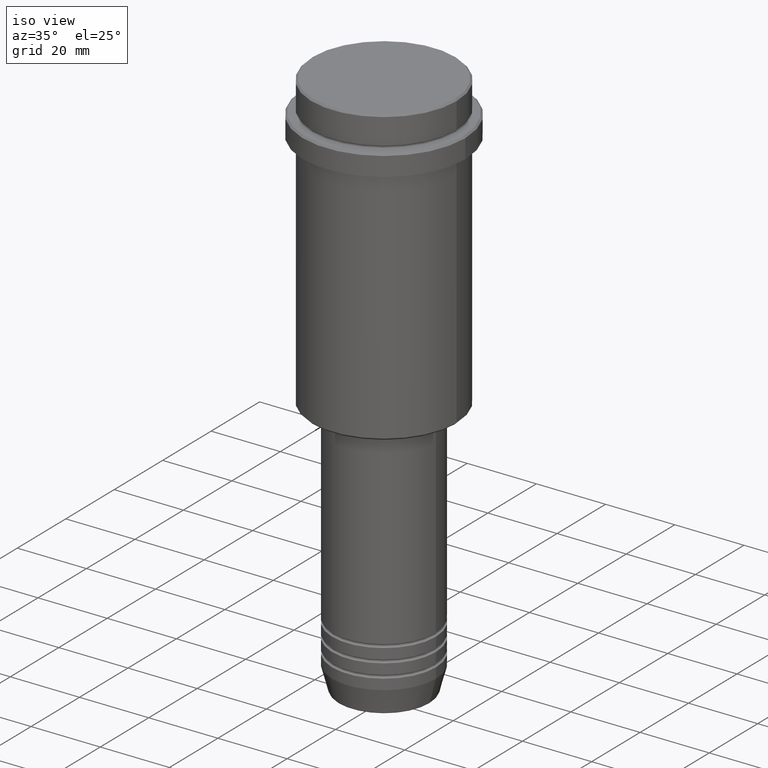
[diagram: clean part render]
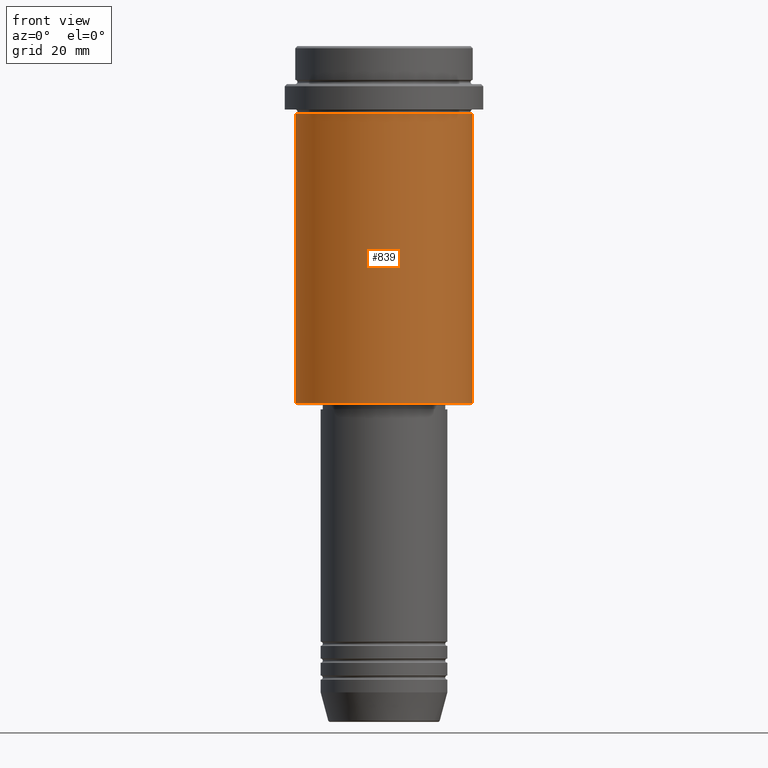
[diagram: tour spotlight — one face highlighted and labeled with its STEP entity id]
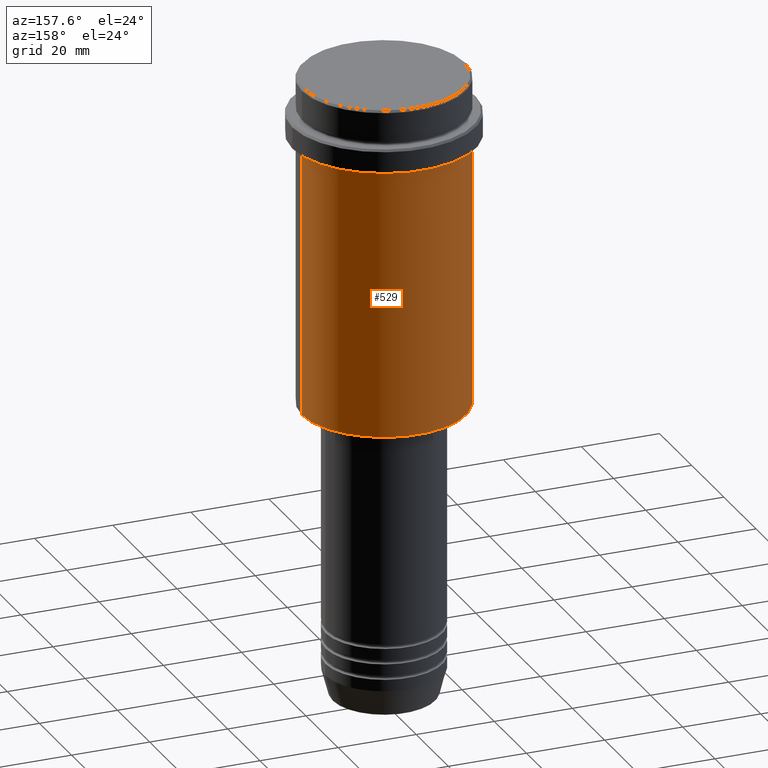
[diagram: tour spotlight — one face highlighted and labeled with its STEP entity id]
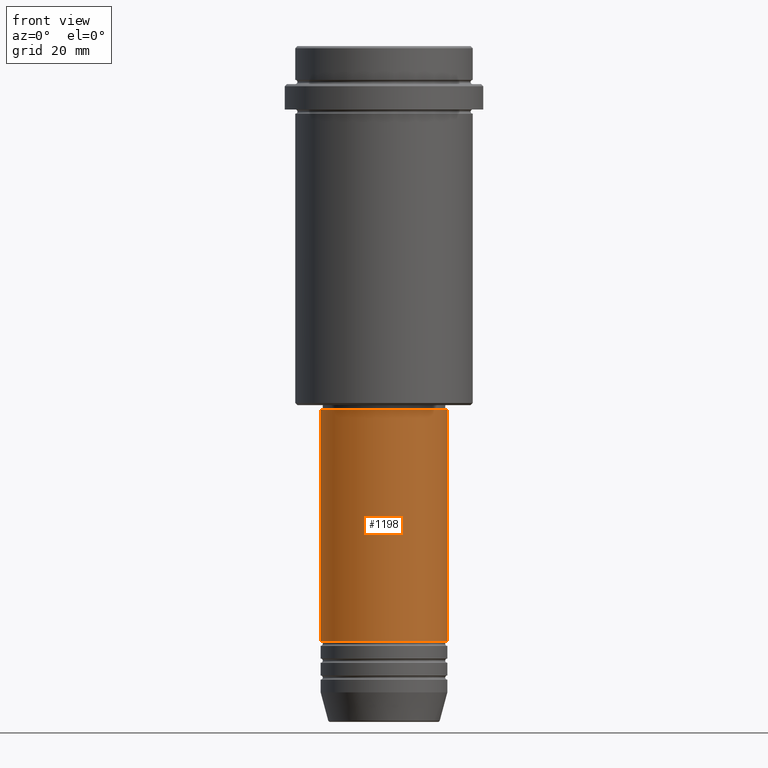
[diagram: tour spotlight — one face highlighted and labeled with its STEP entity id]
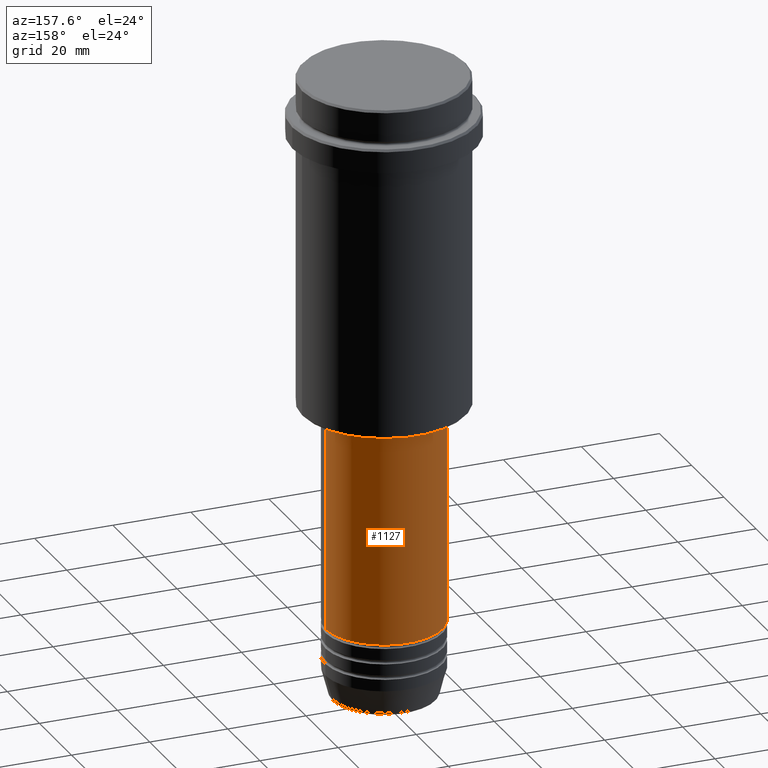
[diagram: tour spotlight — one face highlighted and labeled with its STEP entity id]
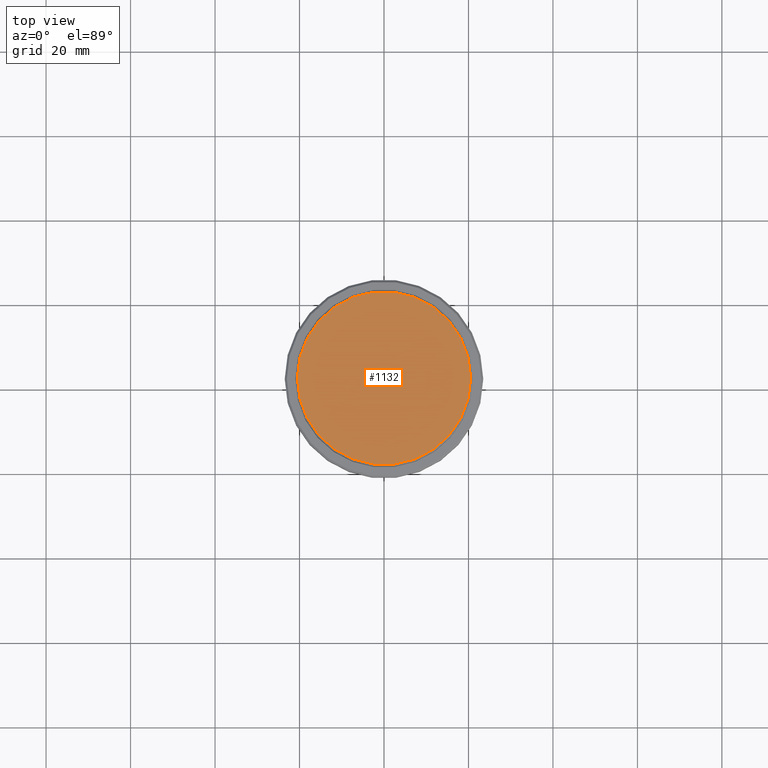
[diagram: tour spotlight — one face highlighted and labeled with its STEP entity id]
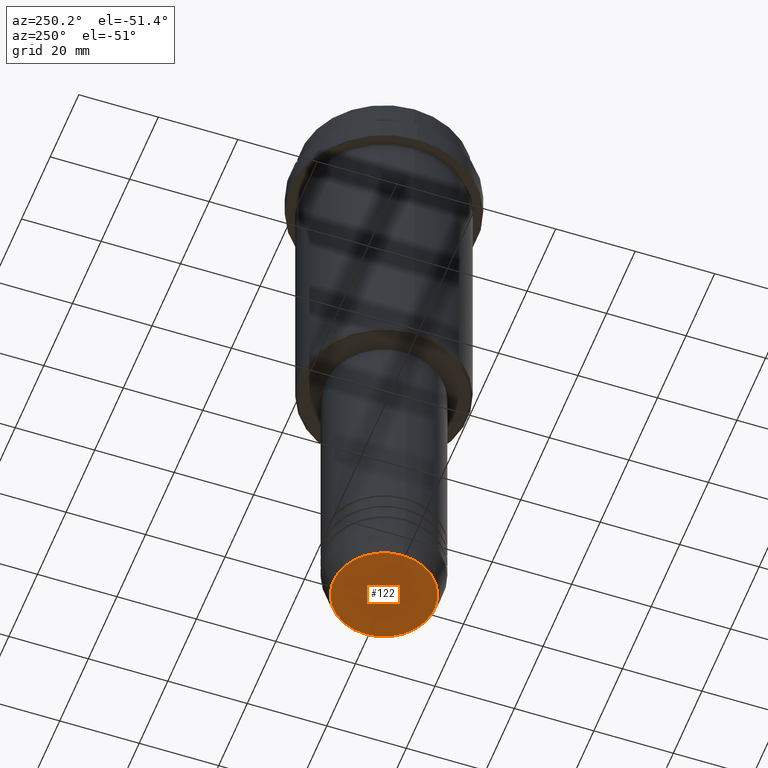
[diagram: tour spotlight — one face highlighted and labeled with its STEP entity id]
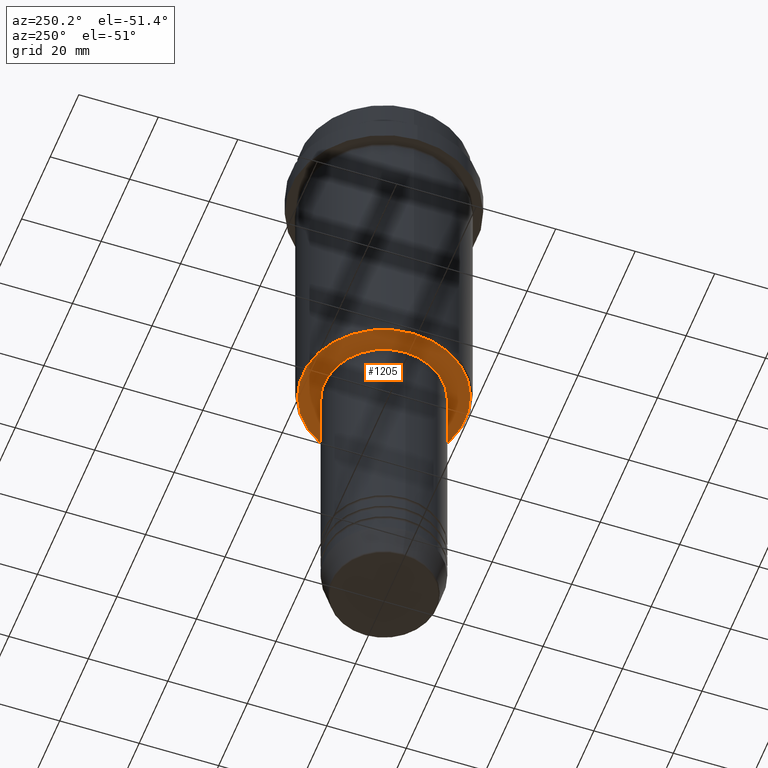
[diagram: tour spotlight — one face highlighted and labeled with its STEP entity id]
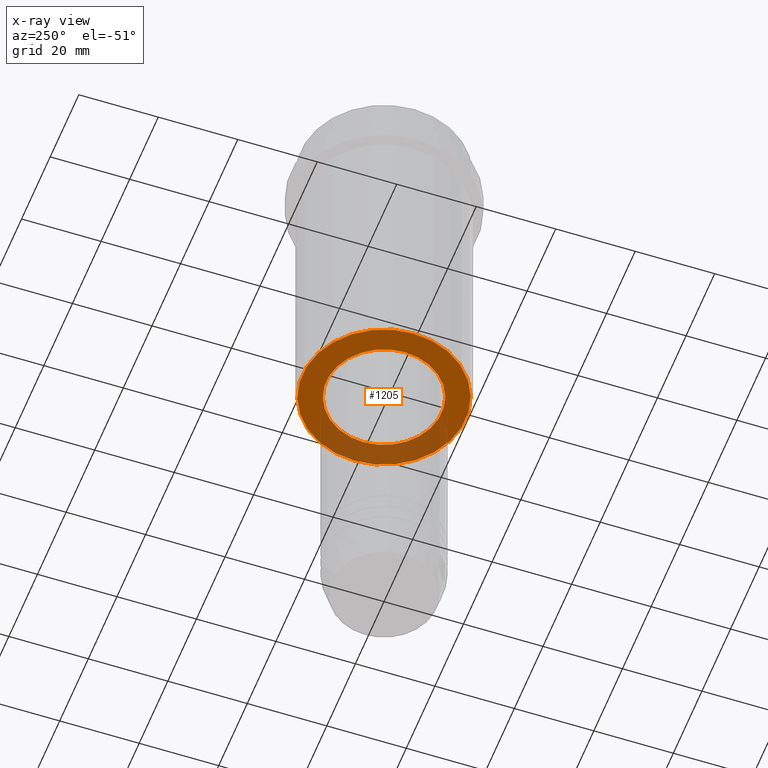
[diagram: x-ray of the same camera — body ghosted, this tour face saturated]
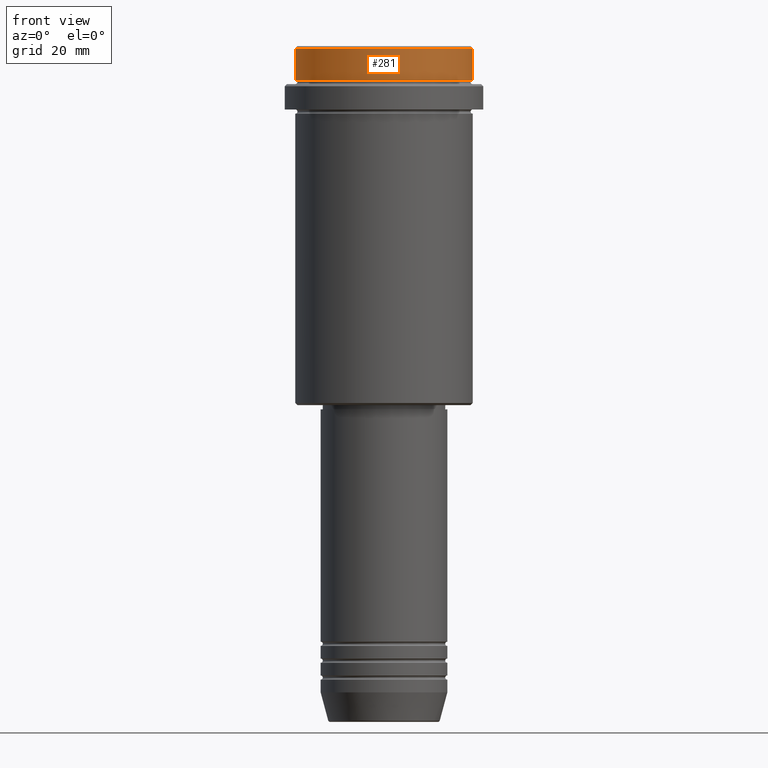
[diagram: tour spotlight — one face highlighted and labeled with its STEP entity id]
A machine part: a face-by-face anatomy tour. The part has 52 B-rep faces; the first image is the clean iso view, then the 8 largest visible faces are spotlighted one at a time (largest first), each with its STEP entity span.

Face 1 — front view, entity #839. In plain terms, the highlighted cylindrical surface (partial cylindrical patch) has radius 21 mm, axis along (-0, -0, 1).
Definition (entity closure, byte-faithful):
#51 = CARTESIAN_POINT ( 'NONE',  ( -21.00000000000000000, 2.571758278209441661E-15, 0.000000000000000000 ) ) ;
#146 = ORIENTED_EDGE ( 'NONE', *, *, #1324, .F. ) ;
#159 = LINE ( 'NONE', #51, #449 ) ;
#230 = CARTESIAN_POINT ( 'NONE',  ( -21.00000000000000000, 2.571758278209441661E-15, -84.50000000000001421 ) ) ;
#309 = EDGE_LOOP ( 'NONE', ( #570, #1296, #1130, #146 ) ) ;
#381 = VERTEX_POINT ( 'NONE', #1159 ) ;
#423 = CARTESIAN_POINT ( 'NONE',  ( 0.000000000000000000, 0.000000000000000000, 0.000000000000000000 ) ) ;
#448 = CARTESIAN_POINT ( 'NONE',  ( 0.000000000000000000, 0.000000000000000000, -84.50000000000001421 ) ) ;
#449 = VECTOR ( 'NONE', #811, 1000.000000000000000 ) ;
#452 = EDGE_CURVE ( 'NONE', #1274, #1176, #159, .T. ) ;
#538 = DIRECTION ( 'NONE',  ( 1.000000000000000000, 0.000000000000000000, 0.000000000000000000 ) ) ;
#550 = CIRCLE ( 'NONE', #1148, 21.00000000000000000 ) ;
#556 = CARTESIAN_POINT ( 'NONE',  ( 0.000000000000000000, 0.000000000000000000, -16.00000000000000355 ) ) ;
#570 = ORIENTED_EDGE ( 'NONE', *, *, #452, .F. ) ;
#609 = FACE_OUTER_BOUND ( 'NONE', #309, .T. ) ;
#685 = VERTEX_POINT ( 'NONE', #1173 ) ;
#699 = AXIS2_PLACEMENT_3D ( 'NONE', #423, #856, #1385 ) ;
#808 = LINE ( 'NONE', #1250, #902 ) ;
#811 = DIRECTION ( 'NONE',  ( -0.000000000000000000, -0.000000000000000000, 1.000000000000000000 ) ) ;
#832 = CARTESIAN_POINT ( 'NONE',  ( -21.00000000000000000, 2.571758278209441661E-15, -16.00000000000000355 ) ) ;
#839 = ADVANCED_FACE ( 'NONE', ( #609 ), #1403, .T. ) ;
#856 = DIRECTION ( 'NONE',  ( -0.000000000000000000, -0.000000000000000000, 1.000000000000000000 ) ) ;
#884 = DIRECTION ( 'NONE',  ( -0.000000000000000000, -0.000000000000000000, 1.000000000000000000 ) ) ;
#902 = VECTOR ( 'NONE', #1129, 1000.000000000000000 ) ;
#990 = EDGE_CURVE ( 'NONE', #685, #381, #808, .T. ) ;
#1101 = DIRECTION ( 'NONE',  ( -0.000000000000000000, -0.000000000000000000, 1.000000000000000000 ) ) ;
#1129 = DIRECTION ( 'NONE',  ( -0.000000000000000000, -0.000000000000000000, 1.000000000000000000 ) ) ;
#1130 = ORIENTED_EDGE ( 'NONE', *, *, #990, .T. ) ;
#1148 = AXIS2_PLACEMENT_3D ( 'NONE', #448, #884, #1241 ) ;
#1159 = CARTESIAN_POINT ( 'NONE',  ( 21.00000000000000000, 0.000000000000000000, -16.00000000000000355 ) ) ;
#1173 = CARTESIAN_POINT ( 'NONE',  ( 21.00000000000000000, 0.000000000000000000, -84.50000000000001421 ) ) ;
#1176 = VERTEX_POINT ( 'NONE', #832 ) ;
#1241 = DIRECTION ( 'NONE',  ( -1.000000000000000000, 0.000000000000000000, 0.000000000000000000 ) ) ;
#1250 = CARTESIAN_POINT ( 'NONE',  ( 21.00000000000000000, 0.000000000000000000, 0.000000000000000000 ) ) ;
#1263 = CIRCLE ( 'NONE', #1373, 21.00000000000000000 ) ;
#1274 = VERTEX_POINT ( 'NONE', #230 ) ;
#1296 = ORIENTED_EDGE ( 'NONE', *, *, #1405, .T. ) ;
#1324 = EDGE_CURVE ( 'NONE', #1176, #381, #1263, .T. ) ;
#1373 = AXIS2_PLACEMENT_3D ( 'NONE', #556, #1101, #538 ) ;
#1385 = DIRECTION ( 'NONE',  ( 1.000000000000000000, 0.000000000000000000, 0.000000000000000000 ) ) ;
#1403 = CYLINDRICAL_SURFACE ( 'NONE', #699, 21.00000000000000000 ) ;
#1405 = EDGE_CURVE ( 'NONE', #1274, #685, #550, .T. ) ;

Face 2 — auxiliary view, entity #529. In plain terms, the highlighted cylindrical surface (partial cylindrical patch) has radius 21 mm, axis along (-0, -0, 1).
Definition (entity closure, byte-faithful):
#33 = DIRECTION ( 'NONE',  ( -0.000000000000000000, -0.000000000000000000, 1.000000000000000000 ) ) ;
#51 = CARTESIAN_POINT ( 'NONE',  ( -21.00000000000000000, 2.571758278209441661E-15, 0.000000000000000000 ) ) ;
#125 = DIRECTION ( 'NONE',  ( 1.000000000000000000, 0.000000000000000000, 0.000000000000000000 ) ) ;
#133 = AXIS2_PLACEMENT_3D ( 'NONE', #191, #621, #964 ) ;
#159 = LINE ( 'NONE', #51, #449 ) ;
#191 = CARTESIAN_POINT ( 'NONE',  ( 0.000000000000000000, 0.000000000000000000, 0.000000000000000000 ) ) ;
#230 = CARTESIAN_POINT ( 'NONE',  ( -21.00000000000000000, 2.571758278209441661E-15, -84.50000000000001421 ) ) ;
#257 = AXIS2_PLACEMENT_3D ( 'NONE', #485, #33, #1337 ) ;
#279 = AXIS2_PLACEMENT_3D ( 'NONE', #1322, #667, #125 ) ;
#363 = CYLINDRICAL_SURFACE ( 'NONE', #133, 21.00000000000000000 ) ;
#381 = VERTEX_POINT ( 'NONE', #1159 ) ;
#449 = VECTOR ( 'NONE', #811, 1000.000000000000000 ) ;
#452 = EDGE_CURVE ( 'NONE', #1274, #1176, #159, .T. ) ;
#485 = CARTESIAN_POINT ( 'NONE',  ( 0.000000000000000000, 0.000000000000000000, -84.50000000000001421 ) ) ;
#496 = CIRCLE ( 'NONE', #257, 21.00000000000000000 ) ;
#529 = ADVANCED_FACE ( 'NONE', ( #600 ), #363, .T. ) ;
#600 = FACE_OUTER_BOUND ( 'NONE', #727, .T. ) ;
#621 = DIRECTION ( 'NONE',  ( -0.000000000000000000, -0.000000000000000000, 1.000000000000000000 ) ) ;
#667 = DIRECTION ( 'NONE',  ( -0.000000000000000000, -0.000000000000000000, 1.000000000000000000 ) ) ;
#685 = VERTEX_POINT ( 'NONE', #1173 ) ;
#727 = EDGE_LOOP ( 'NONE', ( #950, #1051, #836, #875 ) ) ;
#808 = LINE ( 'NONE', #1250, #902 ) ;
#811 = DIRECTION ( 'NONE',  ( -0.000000000000000000, -0.000000000000000000, 1.000000000000000000 ) ) ;
#832 = CARTESIAN_POINT ( 'NONE',  ( -21.00000000000000000, 2.571758278209441661E-15, -16.00000000000000355 ) ) ;
#836 = ORIENTED_EDGE ( 'NONE', *, *, #970, .F. ) ;
#875 = ORIENTED_EDGE ( 'NONE', *, *, #990, .F. ) ;
#902 = VECTOR ( 'NONE', #1129, 1000.000000000000000 ) ;
#950 = ORIENTED_EDGE ( 'NONE', *, *, #1020, .T. ) ;
#964 = DIRECTION ( 'NONE',  ( 1.000000000000000000, 0.000000000000000000, 0.000000000000000000 ) ) ;
#970 = EDGE_CURVE ( 'NONE', #381, #1176, #1371, .T. ) ;
#990 = EDGE_CURVE ( 'NONE', #685, #381, #808, .T. ) ;
#1020 = EDGE_CURVE ( 'NONE', #685, #1274, #496, .T. ) ;
#1051 = ORIENTED_EDGE ( 'NONE', *, *, #452, .T. ) ;
#1129 = DIRECTION ( 'NONE',  ( -0.000000000000000000, -0.000000000000000000, 1.000000000000000000 ) ) ;
#1159 = CARTESIAN_POINT ( 'NONE',  ( 21.00000000000000000, 0.000000000000000000, -16.00000000000000355 ) ) ;
#1173 = CARTESIAN_POINT ( 'NONE',  ( 21.00000000000000000, 0.000000000000000000, -84.50000000000001421 ) ) ;
#1176 = VERTEX_POINT ( 'NONE', #832 ) ;
#1250 = CARTESIAN_POINT ( 'NONE',  ( 21.00000000000000000, 0.000000000000000000, 0.000000000000000000 ) ) ;
#1274 = VERTEX_POINT ( 'NONE', #230 ) ;
#1322 = CARTESIAN_POINT ( 'NONE',  ( 0.000000000000000000, 0.000000000000000000, -16.00000000000000355 ) ) ;
#1337 = DIRECTION ( 'NONE',  ( -1.000000000000000000, 0.000000000000000000, 0.000000000000000000 ) ) ;
#1371 = CIRCLE ( 'NONE', #279, 21.00000000000000000 ) ;

Face 3 — front view, entity #1198. In plain terms, the highlighted cylindrical surface (partial cylindrical patch) has radius 15 mm, axis along (-0, -0, 1).
Definition (entity closure, byte-faithful):
#61 = LINE ( 'NONE', #1271, #1118 ) ;
#81 = DIRECTION ( 'NONE',  ( -0.000000000000000000, -0.000000000000000000, 1.000000000000000000 ) ) ;
#95 = ORIENTED_EDGE ( 'NONE', *, *, #969, .F. ) ;
#119 = CARTESIAN_POINT ( 'NONE',  ( 0.000000000000000000, 0.000000000000000000, -86.00000000000000000 ) ) ;
#123 = CARTESIAN_POINT ( 'NONE',  ( -15.00000000000000000, 1.836970198721029589E-15, -140.9999999999999147 ) ) ;
#156 = VECTOR ( 'NONE', #1199, 1000.000000000000000 ) ;
#175 = CARTESIAN_POINT ( 'NONE',  ( 0.000000000000000000, 0.000000000000000000, 0.000000000000000000 ) ) ;
#204 = CARTESIAN_POINT ( 'NONE',  ( 0.000000000000000000, 0.000000000000000000, -140.9999999999999147 ) ) ;
#297 = CIRCLE ( 'NONE', #521, 15.00000000000000000 ) ;
#330 = ORIENTED_EDGE ( 'NONE', *, *, #714, .T. ) ;
#451 = EDGE_LOOP ( 'NONE', ( #1402, #707, #330, #95 ) ) ;
#505 = EDGE_CURVE ( 'NONE', #1239, #644, #749, .T. ) ;
#506 = CARTESIAN_POINT ( 'NONE',  ( -15.00000000000000000, 1.836970198721029589E-15, -86.00000000000000000 ) ) ;
#521 = AXIS2_PLACEMENT_3D ( 'NONE', #204, #752, #1083 ) ;
#604 = EDGE_CURVE ( 'NONE', #1239, #782, #297, .T. ) ;
#607 = DIRECTION ( 'NONE',  ( -0.000000000000000000, -0.000000000000000000, 1.000000000000000000 ) ) ;
#644 = VERTEX_POINT ( 'NONE', #506 ) ;
#707 = ORIENTED_EDGE ( 'NONE', *, *, #604, .T. ) ;
#712 = FACE_OUTER_BOUND ( 'NONE', #451, .T. ) ;
#714 = EDGE_CURVE ( 'NONE', #782, #1091, #61, .T. ) ;
#749 = LINE ( 'NONE', #974, #156 ) ;
#752 = DIRECTION ( 'NONE',  ( -0.000000000000000000, -0.000000000000000000, 1.000000000000000000 ) ) ;
#782 = VERTEX_POINT ( 'NONE', #939 ) ;
#879 = DIRECTION ( 'NONE',  ( 1.000000000000000000, 0.000000000000000000, 0.000000000000000000 ) ) ;
#939 = CARTESIAN_POINT ( 'NONE',  ( 15.00000000000000000, 0.000000000000000000, -140.9999999999999147 ) ) ;
#969 = EDGE_CURVE ( 'NONE', #644, #1091, #1328, .T. ) ;
#974 = CARTESIAN_POINT ( 'NONE',  ( -15.00000000000000000, 1.836970198721029589E-15, 0.000000000000000000 ) ) ;
#992 = DIRECTION ( 'NONE',  ( -0.000000000000000000, -0.000000000000000000, 1.000000000000000000 ) ) ;
#1026 = AXIS2_PLACEMENT_3D ( 'NONE', #119, #992, #879 ) ;
#1059 = DIRECTION ( 'NONE',  ( 1.000000000000000000, 0.000000000000000000, 0.000000000000000000 ) ) ;
#1075 = AXIS2_PLACEMENT_3D ( 'NONE', #175, #607, #1059 ) ;
#1083 = DIRECTION ( 'NONE',  ( 1.000000000000000000, 0.000000000000000000, 0.000000000000000000 ) ) ;
#1091 = VERTEX_POINT ( 'NONE', #1352 ) ;
#1118 = VECTOR ( 'NONE', #81, 1000.000000000000000 ) ;
#1155 = CYLINDRICAL_SURFACE ( 'NONE', #1075, 15.00000000000000000 ) ;
#1198 = ADVANCED_FACE ( 'NONE', ( #712 ), #1155, .T. ) ;
#1199 = DIRECTION ( 'NONE',  ( -0.000000000000000000, -0.000000000000000000, 1.000000000000000000 ) ) ;
#1239 = VERTEX_POINT ( 'NONE', #123 ) ;
#1271 = CARTESIAN_POINT ( 'NONE',  ( 15.00000000000000000, 0.000000000000000000, 0.000000000000000000 ) ) ;
#1328 = CIRCLE ( 'NONE', #1026, 15.00000000000000000 ) ;
#1352 = CARTESIAN_POINT ( 'NONE',  ( 15.00000000000000000, 0.000000000000000000, -86.00000000000000000 ) ) ;
#1402 = ORIENTED_EDGE ( 'NONE', *, *, #505, .F. ) ;

Face 4 — auxiliary view, entity #1127. In plain terms, the highlighted cylindrical surface (partial cylindrical patch) has radius 15 mm, axis along (-0, -0, 1).
Definition (entity closure, byte-faithful):
#61 = LINE ( 'NONE', #1271, #1118 ) ;
#81 = DIRECTION ( 'NONE',  ( -0.000000000000000000, -0.000000000000000000, 1.000000000000000000 ) ) ;
#85 = DIRECTION ( 'NONE',  ( 1.000000000000000000, 0.000000000000000000, 0.000000000000000000 ) ) ;
#105 = DIRECTION ( 'NONE',  ( -0.000000000000000000, -0.000000000000000000, 1.000000000000000000 ) ) ;
#123 = CARTESIAN_POINT ( 'NONE',  ( -15.00000000000000000, 1.836970198721029589E-15, -140.9999999999999147 ) ) ;
#156 = VECTOR ( 'NONE', #1199, 1000.000000000000000 ) ;
#185 = EDGE_LOOP ( 'NONE', ( #1287, #630, #828, #1281 ) ) ;
#286 = DIRECTION ( 'NONE',  ( -0.000000000000000000, -0.000000000000000000, 1.000000000000000000 ) ) ;
#296 = DIRECTION ( 'NONE',  ( 1.000000000000000000, 0.000000000000000000, 0.000000000000000000 ) ) ;
#305 = EDGE_CURVE ( 'NONE', #782, #1239, #1000, .T. ) ;
#354 = CARTESIAN_POINT ( 'NONE',  ( 0.000000000000000000, 0.000000000000000000, -86.00000000000000000 ) ) ;
#389 = AXIS2_PLACEMENT_3D ( 'NONE', #915, #286, #296 ) ;
#505 = EDGE_CURVE ( 'NONE', #1239, #644, #749, .T. ) ;
#506 = CARTESIAN_POINT ( 'NONE',  ( -15.00000000000000000, 1.836970198721029589E-15, -86.00000000000000000 ) ) ;
#553 = DIRECTION ( 'NONE',  ( 1.000000000000000000, 0.000000000000000000, 0.000000000000000000 ) ) ;
#567 = CIRCLE ( 'NONE', #1120, 15.00000000000000000 ) ;
#603 = CYLINDRICAL_SURFACE ( 'NONE', #981, 15.00000000000000000 ) ;
#630 = ORIENTED_EDGE ( 'NONE', *, *, #505, .T. ) ;
#644 = VERTEX_POINT ( 'NONE', #506 ) ;
#714 = EDGE_CURVE ( 'NONE', #782, #1091, #61, .T. ) ;
#749 = LINE ( 'NONE', #974, #156 ) ;
#782 = VERTEX_POINT ( 'NONE', #939 ) ;
#828 = ORIENTED_EDGE ( 'NONE', *, *, #892, .F. ) ;
#892 = EDGE_CURVE ( 'NONE', #1091, #644, #567, .T. ) ;
#915 = CARTESIAN_POINT ( 'NONE',  ( 0.000000000000000000, 0.000000000000000000, -140.9999999999999147 ) ) ;
#926 = FACE_OUTER_BOUND ( 'NONE', #185, .T. ) ;
#939 = CARTESIAN_POINT ( 'NONE',  ( 15.00000000000000000, 0.000000000000000000, -140.9999999999999147 ) ) ;
#974 = CARTESIAN_POINT ( 'NONE',  ( -15.00000000000000000, 1.836970198721029589E-15, 0.000000000000000000 ) ) ;
#981 = AXIS2_PLACEMENT_3D ( 'NONE', #1259, #1042, #85 ) ;
#1000 = CIRCLE ( 'NONE', #389, 15.00000000000000000 ) ;
#1042 = DIRECTION ( 'NONE',  ( -0.000000000000000000, -0.000000000000000000, 1.000000000000000000 ) ) ;
#1091 = VERTEX_POINT ( 'NONE', #1352 ) ;
#1118 = VECTOR ( 'NONE', #81, 1000.000000000000000 ) ;
#1120 = AXIS2_PLACEMENT_3D ( 'NONE', #354, #105, #553 ) ;
#1127 = ADVANCED_FACE ( 'NONE', ( #926 ), #603, .T. ) ;
#1199 = DIRECTION ( 'NONE',  ( -0.000000000000000000, -0.000000000000000000, 1.000000000000000000 ) ) ;
#1239 = VERTEX_POINT ( 'NONE', #123 ) ;
#1259 = CARTESIAN_POINT ( 'NONE',  ( 0.000000000000000000, 0.000000000000000000, 0.000000000000000000 ) ) ;
#1271 = CARTESIAN_POINT ( 'NONE',  ( 15.00000000000000000, 0.000000000000000000, 0.000000000000000000 ) ) ;
#1281 = ORIENTED_EDGE ( 'NONE', *, *, #714, .F. ) ;
#1287 = ORIENTED_EDGE ( 'NONE', *, *, #305, .T. ) ;
#1352 = CARTESIAN_POINT ( 'NONE',  ( 15.00000000000000000, 0.000000000000000000, -86.00000000000000000 ) ) ;

Face 5 — top view, entity #1132. In plain terms, the highlighted planar face has unit normal (0, -0, 1).
Definition (entity closure, byte-faithful):
#3 = AXIS2_PLACEMENT_3D ( 'NONE', #488, #921, #169 ) ;
#16 = CARTESIAN_POINT ( 'NONE',  ( 0.000000000000000000, 0.000000000000000000, 0.000000000000000000 ) ) ;
#47 = EDGE_CURVE ( 'NONE', #554, #396, #280, .T. ) ;
#169 = DIRECTION ( 'NONE',  ( 1.000000000000000000, 0.000000000000000000, 0.000000000000000000 ) ) ;
#203 = CARTESIAN_POINT ( 'NONE',  ( 20.49999999999997513, 2.541142108230756691E-15, 0.000000000000000000 ) ) ;
#280 = CIRCLE ( 'NONE', #3, 20.49999999999997513 ) ;
#341 = ORIENTED_EDGE ( 'NONE', *, *, #47, .T. ) ;
#396 = VERTEX_POINT ( 'NONE', #203 ) ;
#482 = CARTESIAN_POINT ( 'NONE',  ( -20.49999999999997513, 0.000000000000000000, 0.000000000000000000 ) ) ;
#488 = CARTESIAN_POINT ( 'NONE',  ( 0.000000000000000000, 0.000000000000000000, 0.000000000000000000 ) ) ;
#500 = DIRECTION ( 'NONE',  ( 0.000000000000000000, -0.000000000000000000, 1.000000000000000000 ) ) ;
#554 = VERTEX_POINT ( 'NONE', #482 ) ;
#794 = AXIS2_PLACEMENT_3D ( 'NONE', #1378, #500, #1036 ) ;
#796 = CIRCLE ( 'NONE', #1330, 20.49999999999997513 ) ;
#921 = DIRECTION ( 'NONE',  ( -0.000000000000000000, -0.000000000000000000, 1.000000000000000000 ) ) ;
#988 = ORIENTED_EDGE ( 'NONE', *, *, #1395, .T. ) ;
#999 = EDGE_LOOP ( 'NONE', ( #341, #988 ) ) ;
#1036 = DIRECTION ( 'NONE',  ( 1.000000000000000000, 0.000000000000000000, 0.000000000000000000 ) ) ;
#1111 = DIRECTION ( 'NONE',  ( -0.000000000000000000, -0.000000000000000000, 1.000000000000000000 ) ) ;
#1128 = DIRECTION ( 'NONE',  ( 1.000000000000000000, 0.000000000000000000, 0.000000000000000000 ) ) ;
#1132 = ADVANCED_FACE ( 'NONE', ( #1369 ), #1162, .T. ) ;
#1162 = PLANE ( 'NONE',  #794 ) ;
#1330 = AXIS2_PLACEMENT_3D ( 'NONE', #16, #1111, #1128 ) ;
#1369 = FACE_OUTER_BOUND ( 'NONE', #999, .T. ) ;
#1378 = CARTESIAN_POINT ( 'NONE',  ( 0.000000000000000000, 0.000000000000000000, 0.000000000000000000 ) ) ;
#1395 = EDGE_CURVE ( 'NONE', #396, #554, #796, .T. ) ;

Face 6 — auxiliary view, entity #122. In plain terms, the highlighted planar face has unit normal (0, -0, 1).
Definition (entity closure, byte-faithful):
#79 = CARTESIAN_POINT ( 'NONE',  ( 0.000000000000000000, 0.000000000000000000, -160.0000000000000000 ) ) ;
#118 = DIRECTION ( 'NONE',  ( 0.000000000000000000, 0.000000000000000000, -1.000000000000000000 ) ) ;
#122 = ADVANCED_FACE ( 'NONE', ( #965 ), #428, .F. ) ;
#234 = AXIS2_PLACEMENT_3D ( 'NONE', #803, #118, #242 ) ;
#242 = DIRECTION ( 'NONE',  ( 1.000000000000000000, 0.000000000000000000, 0.000000000000000000 ) ) ;
#292 = DIRECTION ( 'NONE',  ( 1.000000000000000000, 0.000000000000000000, 0.000000000000000000 ) ) ;
#349 = AXIS2_PLACEMENT_3D ( 'NONE', #744, #735, #837 ) ;
#393 = CIRCLE ( 'NONE', #774, 12.74069215899265828 ) ;
#422 = EDGE_LOOP ( 'NONE', ( #1163, #1299 ) ) ;
#428 = PLANE ( 'NONE',  #349 ) ;
#433 = VERTEX_POINT ( 'NONE', #919 ) ;
#583 = VERTEX_POINT ( 'NONE', #1015 ) ;
#641 = EDGE_CURVE ( 'NONE', #433, #583, #816, .T. ) ;
#735 = DIRECTION ( 'NONE',  ( 0.000000000000000000, -0.000000000000000000, 1.000000000000000000 ) ) ;
#744 = CARTESIAN_POINT ( 'NONE',  ( 0.000000000000000000, 0.000000000000000000, -160.0000000000000000 ) ) ;
#774 = AXIS2_PLACEMENT_3D ( 'NONE', #79, #1273, #292 ) ;
#803 = CARTESIAN_POINT ( 'NONE',  ( 0.000000000000000000, 0.000000000000000000, -160.0000000000000000 ) ) ;
#816 = CIRCLE ( 'NONE', #234, 12.74069215899265828 ) ;
#837 = DIRECTION ( 'NONE',  ( 1.000000000000000000, 0.000000000000000000, 0.000000000000000000 ) ) ;
#919 = CARTESIAN_POINT ( 'NONE',  ( 12.74069215899265828, 0.000000000000000000, -160.0000000000000000 ) ) ;
#965 = FACE_OUTER_BOUND ( 'NONE', #422, .T. ) ;
#1015 = CARTESIAN_POINT ( 'NONE',  ( -12.74069215899265828, 1.589857736427681035E-15, -160.0000000000000000 ) ) ;
#1163 = ORIENTED_EDGE ( 'NONE', *, *, #641, .T. ) ;
#1214 = EDGE_CURVE ( 'NONE', #583, #433, #393, .T. ) ;
#1273 = DIRECTION ( 'NONE',  ( 0.000000000000000000, 0.000000000000000000, -1.000000000000000000 ) ) ;
#1299 = ORIENTED_EDGE ( 'NONE', *, *, #1214, .T. ) ;

Face 7 — auxiliary view, entity #1205. An x-ray twin of the same camera follows (body ghosted, this face saturated) — the face is partly hidden behind the body. In plain terms, the highlighted planar face has unit normal (0, 0, -1).
Definition (entity closure, byte-faithful):
#45 = AXIS2_PLACEMENT_3D ( 'NONE', #1407, #224, #980 ) ;
#54 = CARTESIAN_POINT ( 'NONE',  ( -14.49999999999999467, 1.775737858763661620E-15, -85.00000000000000000 ) ) ;
#66 = FACE_OUTER_BOUND ( 'NONE', #73, .T. ) ;
#73 = EDGE_LOOP ( 'NONE', ( #106, #777 ) ) ;
#106 = ORIENTED_EDGE ( 'NONE', *, *, #541, .T. ) ;
#116 = EDGE_CURVE ( 'NONE', #871, #456, #679, .T. ) ;
#147 = DIRECTION ( 'NONE',  ( -1.000000000000000000, 0.000000000000000000, 0.000000000000000000 ) ) ;
#207 = CARTESIAN_POINT ( 'NONE',  ( 0.000000000000000000, 0.000000000000000000, -85.00000000000000000 ) ) ;
#224 = DIRECTION ( 'NONE',  ( 0.000000000000000000, 0.000000000000000000, -1.000000000000000000 ) ) ;
#268 = CARTESIAN_POINT ( 'NONE',  ( 20.50000000000003197, 0.000000000000000000, -85.00000000000000000 ) ) ;
#322 = CARTESIAN_POINT ( 'NONE',  ( 0.000000000000000000, 0.000000000000000000, -85.00000000000000000 ) ) ;
#418 = DIRECTION ( 'NONE',  ( 1.000000000000000000, 0.000000000000000000, 0.000000000000000000 ) ) ;
#444 = ORIENTED_EDGE ( 'NONE', *, *, #1297, .T. ) ;
#456 = VERTEX_POINT ( 'NONE', #268 ) ;
#459 = DIRECTION ( 'NONE',  ( 0.000000000000000000, 0.000000000000000000, -1.000000000000000000 ) ) ;
#473 = CIRCLE ( 'NONE', #569, 14.49999999999999467 ) ;
#491 = CARTESIAN_POINT ( 'NONE',  ( 0.000000000000000000, 0.000000000000000000, -85.00000000000000000 ) ) ;
#541 = EDGE_CURVE ( 'NONE', #456, #871, #1215, .T. ) ;
#569 = AXIS2_PLACEMENT_3D ( 'NONE', #322, #1078, #1401 ) ;
#638 = VERTEX_POINT ( 'NONE', #1252 ) ;
#647 = EDGE_LOOP ( 'NONE', ( #840, #444 ) ) ;
#679 = CIRCLE ( 'NONE', #45, 20.50000000000003197 ) ;
#743 = AXIS2_PLACEMENT_3D ( 'NONE', #491, #1068, #418 ) ;
#758 = EDGE_CURVE ( 'NONE', #638, #1106, #1143, .T. ) ;
#765 = CARTESIAN_POINT ( 'NONE',  ( -20.50000000000003197, 2.541142108230759846E-15, -85.00000000000000000 ) ) ;
#777 = ORIENTED_EDGE ( 'NONE', *, *, #116, .T. ) ;
#838 = PLANE ( 'NONE',  #1217 ) ;
#840 = ORIENTED_EDGE ( 'NONE', *, *, #758, .T. ) ;
#871 = VERTEX_POINT ( 'NONE', #765 ) ;
#949 = CARTESIAN_POINT ( 'NONE',  ( 0.000000000000000000, 21.00000000000000000, -85.00000000000000000 ) ) ;
#980 = DIRECTION ( 'NONE',  ( -1.000000000000000000, 0.000000000000000000, 0.000000000000000000 ) ) ;
#1054 = FACE_BOUND ( 'NONE', #647, .T. ) ;
#1066 = DIRECTION ( 'NONE',  ( 0.000000000000000000, 0.000000000000000000, -1.000000000000000000 ) ) ;
#1068 = DIRECTION ( 'NONE',  ( -0.000000000000000000, -0.000000000000000000, 1.000000000000000000 ) ) ;
#1078 = DIRECTION ( 'NONE',  ( -0.000000000000000000, -0.000000000000000000, 1.000000000000000000 ) ) ;
#1106 = VERTEX_POINT ( 'NONE', #54 ) ;
#1143 = CIRCLE ( 'NONE', #743, 14.49999999999999467 ) ;
#1178 = DIRECTION ( 'NONE',  ( -1.000000000000000000, 0.000000000000000000, -0.000000000000000000 ) ) ;
#1205 = ADVANCED_FACE ( 'NONE', ( #66, #1054 ), #838, .T. ) ;
#1215 = CIRCLE ( 'NONE', #1309, 20.50000000000003197 ) ;
#1217 = AXIS2_PLACEMENT_3D ( 'NONE', #949, #1066, #1178 ) ;
#1252 = CARTESIAN_POINT ( 'NONE',  ( 14.49999999999999467, 0.000000000000000000, -85.00000000000000000 ) ) ;
#1297 = EDGE_CURVE ( 'NONE', #1106, #638, #473, .T. ) ;
#1309 = AXIS2_PLACEMENT_3D ( 'NONE', #207, #459, #147 ) ;
#1401 = DIRECTION ( 'NONE',  ( 1.000000000000000000, 0.000000000000000000, 0.000000000000000000 ) ) ;
#1407 = CARTESIAN_POINT ( 'NONE',  ( 0.000000000000000000, 0.000000000000000000, -85.00000000000000000 ) ) ;

Face 8 — front view, entity #281. In plain terms, the highlighted cylindrical surface (partial cylindrical patch) has radius 21 mm, axis along (-0, -0, 1).
Definition (entity closure, byte-faithful):
#139 = CYLINDRICAL_SURFACE ( 'NONE', #887, 21.00000000000000000 ) ;
#142 = CARTESIAN_POINT ( 'NONE',  ( -21.00000000000000000, 2.571758278209441661E-15, 0.000000000000000000 ) ) ;
#144 = DIRECTION ( 'NONE',  ( -0.000000000000000000, -0.000000000000000000, 1.000000000000000000 ) ) ;
#179 = CARTESIAN_POINT ( 'NONE',  ( 0.000000000000000000, 0.000000000000000000, -7.999999999999998224 ) ) ;
#198 = EDGE_CURVE ( 'NONE', #938, #1270, #1388, .T. ) ;
#235 = VECTOR ( 'NONE', #900, 1000.000000000000000 ) ;
#249 = DIRECTION ( 'NONE',  ( 1.000000000000000000, 0.000000000000000000, 0.000000000000000000 ) ) ;
#281 = ADVANCED_FACE ( 'NONE', ( #1224 ), #139, .T. ) ;
#346 = VECTOR ( 'NONE', #841, 1000.000000000000000 ) ;
#382 = EDGE_CURVE ( 'NONE', #430, #881, #410, .T. ) ;
#410 = CIRCLE ( 'NONE', #612, 21.00000000000000000 ) ;
#430 = VERTEX_POINT ( 'NONE', #1267 ) ;
#584 = CARTESIAN_POINT ( 'NONE',  ( 0.000000000000000000, 0.000000000000000000, 0.000000000000000000 ) ) ;
#612 = AXIS2_PLACEMENT_3D ( 'NONE', #179, #626, #1047 ) ;
#626 = DIRECTION ( 'NONE',  ( -0.000000000000000000, -0.000000000000000000, 1.000000000000000000 ) ) ;
#627 = EDGE_LOOP ( 'NONE', ( #998, #1060, #1319, #1293 ) ) ;
#721 = EDGE_CURVE ( 'NONE', #881, #938, #1056, .T. ) ;
#751 = CARTESIAN_POINT ( 'NONE',  ( 21.00000000000000000, 0.000000000000000000, -7.999999999999998224 ) ) ;
#754 = CARTESIAN_POINT ( 'NONE',  ( -21.00000000000000000, 2.571758278209441661E-15, -0.5000000000000386358 ) ) ;
#804 = DIRECTION ( 'NONE',  ( 0.000000000000000000, 0.000000000000000000, -1.000000000000000000 ) ) ;
#841 = DIRECTION ( 'NONE',  ( -0.000000000000000000, -0.000000000000000000, 1.000000000000000000 ) ) ;
#863 = AXIS2_PLACEMENT_3D ( 'NONE', #1246, #804, #1138 ) ;
#881 = VERTEX_POINT ( 'NONE', #751 ) ;
#887 = AXIS2_PLACEMENT_3D ( 'NONE', #584, #144, #249 ) ;
#900 = DIRECTION ( 'NONE',  ( -0.000000000000000000, -0.000000000000000000, 1.000000000000000000 ) ) ;
#938 = VERTEX_POINT ( 'NONE', #1411 ) ;
#998 = ORIENTED_EDGE ( 'NONE', *, *, #1057, .F. ) ;
#1046 = CARTESIAN_POINT ( 'NONE',  ( 21.00000000000000000, 0.000000000000000000, 0.000000000000000000 ) ) ;
#1047 = DIRECTION ( 'NONE',  ( 1.000000000000000000, 0.000000000000000000, 0.000000000000000000 ) ) ;
#1056 = LINE ( 'NONE', #1046, #346 ) ;
#1057 = EDGE_CURVE ( 'NONE', #430, #1270, #1222, .T. ) ;
#1060 = ORIENTED_EDGE ( 'NONE', *, *, #382, .T. ) ;
#1138 = DIRECTION ( 'NONE',  ( 1.000000000000000000, 0.000000000000000000, 0.000000000000000000 ) ) ;
#1222 = LINE ( 'NONE', #142, #235 ) ;
#1224 = FACE_OUTER_BOUND ( 'NONE', #627, .T. ) ;
#1246 = CARTESIAN_POINT ( 'NONE',  ( 0.000000000000000000, 0.000000000000000000, -0.5000000000000386358 ) ) ;
#1267 = CARTESIAN_POINT ( 'NONE',  ( -21.00000000000000000, 2.571758278209441661E-15, -7.999999999999998224 ) ) ;
#1270 = VERTEX_POINT ( 'NONE', #754 ) ;
#1293 = ORIENTED_EDGE ( 'NONE', *, *, #198, .T. ) ;
#1319 = ORIENTED_EDGE ( 'NONE', *, *, #721, .T. ) ;
#1388 = CIRCLE ( 'NONE', #863, 21.00000000000000000 ) ;
#1411 = CARTESIAN_POINT ( 'NONE',  ( 21.00000000000000000, 0.000000000000000000, -0.5000000000000386358 ) ) ;